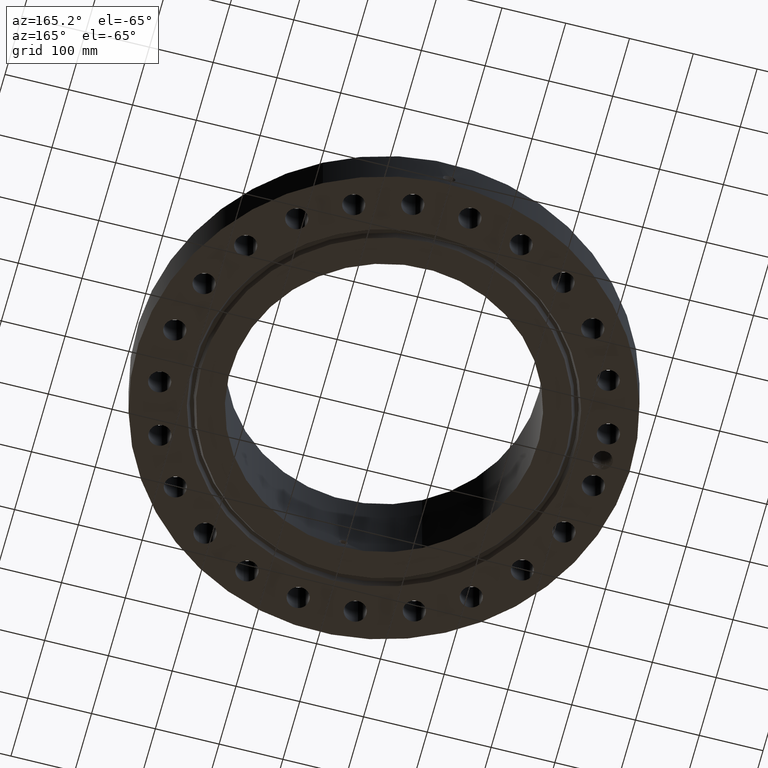
[diagram: clean part render]
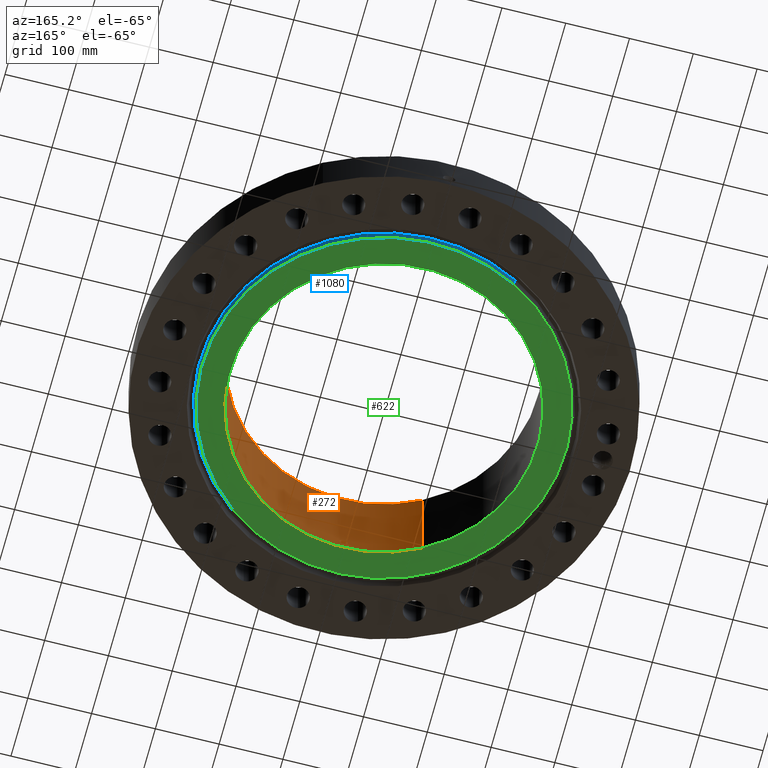
[diagram: same view with three faces highlighted in distinct colors, each labeled with its STEP entity id]
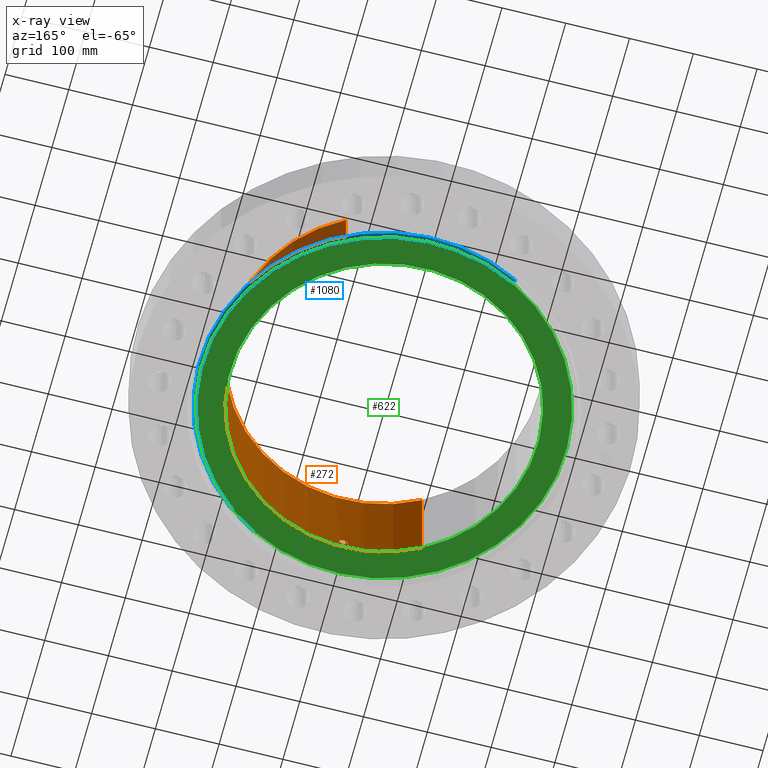
[diagram: x-ray of the same camera — body ghosted, the three highlighted faces saturated]
A machine part, auxiliary view with three faces highlighted in distinct colors.
The next image is the same camera in x-ray (body ghosted, the three faces saturated) — at least one of them is partly hidden behind the body in this view.
Their STEP definitions:

[orange] entity #272 — the highlighted cylindrical surface (partial cylindrical patch) has radius 241.3 mm, axis along (0, 0, -1).
#232=AXIS2_PLACEMENT_3D('Cylinder Axis2P3D',#229,#230,#231) ;
#236=AXIS2_PLACEMENT_3D('Circle Axis2P3D',#234,#235,$) ;
#252=AXIS2_PLACEMENT_3D('Circle Axis2P3D',#250,#251,$) ;
#81=CARTESIAN_POINT('Control Point',(0.219395640473,-9.4974662702,0.630143615351)) ;
#82=CARTESIAN_POINT('Control Point',(0.194442935976,-9.49804268863,0.584467996145)) ;
#83=CARTESIAN_POINT('Control Point',(0.157604838443,-9.49881167078,0.545287826885)) ;
#84=CARTESIAN_POINT('Control Point',(0.111106910988,-9.49955955224,0.516756479645)) ;
#85=CARTESIAN_POINT('Control Point',(0.0336718159171,-9.50015458299,0.494117188479)) ;
#86=CARTESIAN_POINT('Control Point',(-0.0446730559727,-9.49994894618,0.501943895691)) ;
#87=CARTESIAN_POINT('Control Point',(-0.070303365994,-9.4997893107,0.5079568736)) ;
#88=CARTESIAN_POINT('Control Point',(-0.143960137491,-9.49908388261,0.535790152204)) ;
#89=CARTESIAN_POINT('Control Point',(-0.203248272109,-9.49793246591,0.590507156872)) ;
#90=CARTESIAN_POINT('Control Point',(-0.232212659303,-9.49717731095,0.636748027799)) ;
#91=CARTESIAN_POINT('Control Point',(-0.255841018663,-9.49655659161,0.714893997292)) ;
#92=CARTESIAN_POINT('Control Point',(-0.248281876815,-9.49675500842,0.794257014097)) ;
#93=CARTESIAN_POINT('Control Point',(-0.242048130653,-9.49692100928,0.820818016996)) ;
#94=CARTESIAN_POINT('Control Point',(-0.232314918688,-9.49716782921,0.84620780451)) ;
#95=CARTESIAN_POINT('Control Point',(-0.219395640473,-9.4974662702,0.869856384655)) ;
#96=CARTESIAN_POINT('Vertex',(0.219395640473,-9.4974662702,0.630143615351)) ;
#98=CARTESIAN_POINT('Vertex',(-0.219395640473,-9.4974662702,0.869856384655)) ;
#206=CARTESIAN_POINT('Control Point',(-0.219395640473,-9.4974662702,0.869856384655)) ;
#207=CARTESIAN_POINT('Control Point',(-0.194442935984,-9.49804268863,0.915532003846)) ;
#208=CARTESIAN_POINT('Control Point',(-0.157604838467,-9.49881167078,0.954712173096)) ;
#209=CARTESIAN_POINT('Control Point',(-0.111106910956,-9.49955955224,0.98324352037)) ;
#210=CARTESIAN_POINT('Control Point',(-0.0336718158958,-9.50015458299,1.00588281153)) ;
#211=CARTESIAN_POINT('Control Point',(0.0446730559822,-9.49994894618,0.998056104314)) ;
#212=CARTESIAN_POINT('Control Point',(0.0703033659852,-9.4997893107,0.99204312641)) ;
#213=CARTESIAN_POINT('Control Point',(0.14396013747,-9.49908388261,0.964209847812)) ;
#214=CARTESIAN_POINT('Control Point',(0.203248272081,-9.49793246591,0.90949284316)) ;
#215=CARTESIAN_POINT('Control Point',(0.232212659314,-9.49717731095,0.863251972169)) ;
#216=CARTESIAN_POINT('Control Point',(0.255841018661,-9.49655659161,0.785106002695)) ;
#217=CARTESIAN_POINT('Control Point',(0.248281876815,-9.49675500842,0.705742985909)) ;
#218=CARTESIAN_POINT('Control Point',(0.242048130653,-9.49692100928,0.67918198301)) ;
#219=CARTESIAN_POINT('Control Point',(0.232314918688,-9.49716782921,0.653792195496)) ;
#220=CARTESIAN_POINT('Control Point',(0.219395640473,-9.4974662702,0.630143615351)) ;
#229=CARTESIAN_POINT('Axis2P3D Location',(0.,0.,3.37750000001)) ;
#234=CARTESIAN_POINT('Axis2P3D Location',(0.,0.,6.75500000003)) ;
#238=CARTESIAN_POINT('Vertex',(4.55454261676,8.33703433799,6.75500000003)) ;
#240=CARTESIAN_POINT('Vertex',(-4.55454261676,-8.33703433799,6.75500000003)) ;
#243=CARTESIAN_POINT('Line Origine',(4.55454261676,8.33703433799,3.37750000001)) ;
#247=CARTESIAN_POINT('Vertex',(4.55454261676,8.33703433799,-5.70672118484E-014)) ;
#250=CARTESIAN_POINT('Axis2P3D Location',(0.,0.,-5.81861767867E-014)) ;
#254=CARTESIAN_POINT('Vertex',(-4.55454261676,-8.33703433799,-5.70672118484E-014)) ;
#257=CARTESIAN_POINT('Line Origine',(-4.55454261676,-8.33703433799,3.37750000001)) ;
#230=DIRECTION('Axis2P3D Direction',(0.,0.,-0.0393700787402)) ;
#231=DIRECTION('Axis2P3D XDirection',(-0.0188750212049,-0.0345504945626,0.)) ;
#235=DIRECTION('Axis2P3D Direction',(0.,0.,-0.0393700787402)) ;
#244=DIRECTION('Vector Direction',(0.,0.,-0.0393700787402)) ;
#251=DIRECTION('Axis2P3D Direction',(0.,0.,-0.0393700787402)) ;
#258=DIRECTION('Vector Direction',(0.,0.,-0.0393700787402)) ;
#245=VECTOR('Line Direction',#244,0.0393700787402) ;
#259=VECTOR('Line Direction',#258,0.0393700787402) ;
#263=ORIENTED_EDGE('',*,*,#242,.F.) ;
#264=ORIENTED_EDGE('',*,*,#249,.T.) ;
#265=ORIENTED_EDGE('',*,*,#256,.T.) ;
#266=ORIENTED_EDGE('',*,*,#261,.F.) ;
#269=ORIENTED_EDGE('',*,*,#100,.F.) ;
#270=ORIENTED_EDGE('',*,*,#221,.F.) ;
#271=FACE_BOUND('',#268,.T.) ;
#272=ADVANCED_FACE('PartBody',(#267,#271),#233,.F.) ;
#80=B_SPLINE_CURVE_WITH_KNOTS('',5,(#81,#82,#83,#84,#85,#86,#87,#88,#89,#90,#91,#92,#93,#94,#95),.UNSPECIFIED.,.F.,.U.,(6,3,3,3,6),(0.,9.34849736304,14.0229160477,23.3729562087,28.2131465108),.UNSPECIFIED.) ;
#205=B_SPLINE_CURVE_WITH_KNOTS('',5,(#206,#207,#208,#209,#210,#211,#212,#213,#214,#215,#216,#217,#218,#219,#220),.UNSPECIFIED.,.F.,.U.,(6,3,3,3,6),(0.,9.34849736006,14.0229160456,23.3729562032,28.2131465052),.UNSPECIFIED.) ;
#237=CIRCLE('generated circle',#236,9.50000000004) ;
#253=CIRCLE('generated circle',#252,9.50000000004) ;
#233=CYLINDRICAL_SURFACE('generated cylinder',#232,9.50000000004) ;
#100=EDGE_CURVE('',#97,#99,#80,.T.) ;
#221=EDGE_CURVE('',#99,#97,#205,.T.) ;
#242=EDGE_CURVE('',#239,#241,#237,.T.) ;
#249=EDGE_CURVE('',#239,#248,#246,.T.) ;
#256=EDGE_CURVE('',#248,#255,#253,.T.) ;
#261=EDGE_CURVE('',#241,#255,#260,.T.) ;
#262=EDGE_LOOP('',(#263,#264,#265,#266)) ;
#268=EDGE_LOOP('',(#269,#270)) ;
#267=FACE_OUTER_BOUND('',#262,.T.) ;
#246=LINE('Line',#243,#245) ;
#260=LINE('Line',#257,#259) ;
#97=VERTEX_POINT('',#96) ;
#99=VERTEX_POINT('',#98) ;
#239=VERTEX_POINT('',#238) ;
#241=VERTEX_POINT('',#240) ;
#248=VERTEX_POINT('',#247) ;
#255=VERTEX_POINT('',#254) ;

[blue] entity #1080 — the highlighted conical surface has half-angle 23 deg.
#602=AXIS2_PLACEMENT_3D('Circle Axis2P3D',#600,#601,$) ;
#1053=AXIS2_PLACEMENT_3D('Cone Axis2P3D',#1050,#1051,#1052) ;
#1064=AXIS2_PLACEMENT_3D('Circle Axis2P3D',#1062,#1063,$) ;
#600=CARTESIAN_POINT('Axis2P3D Location',(-1.1189649382E-015,0.,0.)) ;
#604=CARTESIAN_POINT('Vertex',(-5.38610621347,9.8592012916,0.)) ;
#606=CARTESIAN_POINT('Vertex',(5.38610621347,-9.8592012916,4.19611851827E-016)) ;
#1050=CARTESIAN_POINT('Axis2P3D Location',(0.,0.,-0.0600000000002)) ;
#1055=CARTESIAN_POINT('Line Origine',(-5.42035758226,9.92189800162,0.168308030548)) ;
#1059=CARTESIAN_POINT('Vertex',(-5.45460895105,9.98459471164,0.336616061096)) ;
#1062=CARTESIAN_POINT('Axis2P3D Location',(0.,0.,0.336616061096)) ;
#1066=CARTESIAN_POINT('Vertex',(5.45460895105,-9.98459471164,0.336616061096)) ;
#1069=CARTESIAN_POINT('Line Origine',(5.42035758226,-9.92189800162,0.168308030548)) ;
#601=DIRECTION('Axis2P3D Direction',(0.,0.,-0.0393700787402)) ;
#1051=DIRECTION('Axis2P3D Direction',(0.,0.,0.0393700787402)) ;
#1052=DIRECTION('Axis2P3D XDirection',(-0.0188750212049,0.0345504945626,0.)) ;
#1056=DIRECTION('Vector Direction',(-0.00737505833565,0.0134999537303,0.0362403485611)) ;
#1063=DIRECTION('Axis2P3D Direction',(0.,0.,0.0393700787402)) ;
#1070=DIRECTION('Vector Direction',(0.00737505833565,-0.0134999537303,0.0362403485611)) ;
#1057=VECTOR('Line Direction',#1056,0.0393700787402) ;
#1071=VECTOR('Line Direction',#1070,0.0393700787402) ;
#1075=ORIENTED_EDGE('',*,*,#1061,.F.) ;
#1076=ORIENTED_EDGE('',*,*,#1068,.F.) ;
#1077=ORIENTED_EDGE('',*,*,#1073,.T.) ;
#1078=ORIENTED_EDGE('',*,*,#608,.F.) ;
#1080=ADVANCED_FACE('PartBody',(#1079),#1054,.T.) ;
#603=CIRCLE('generated circle',#602,11.2345) ;
#1065=CIRCLE('generated circle',#1064,11.3773850407) ;
#1054=CONICAL_SURFACE('Cone',#1053,11.2090315111,0.401425727959) ;
#608=EDGE_CURVE('',#605,#607,#603,.T.) ;
#1061=EDGE_CURVE('',#1060,#605,#1058,.F.) ;
#1068=EDGE_CURVE('',#1067,#1060,#1065,.T.) ;
#1073=EDGE_CURVE('',#1067,#607,#1072,.F.) ;
#1074=EDGE_LOOP('',(#1075,#1076,#1077,#1078)) ;
#1079=FACE_OUTER_BOUND('',#1074,.T.) ;
#1058=LINE('Line',#1055,#1057) ;
#1072=LINE('Line',#1069,#1071) ;
#605=VERTEX_POINT('',#604) ;
#607=VERTEX_POINT('',#606) ;
#1060=VERTEX_POINT('',#1059) ;
#1067=VERTEX_POINT('',#1066) ;

[green] entity #622 — the highlighted planar face has unit normal (0, 0, -1).
#252=AXIS2_PLACEMENT_3D('Circle Axis2P3D',#250,#251,$) ;
#543=AXIS2_PLACEMENT_3D('Circle Axis2P3D',#541,#542,$) ;
#598=AXIS2_PLACEMENT_3D('Plane Axis2P3D',#595,#596,#597) ;
#602=AXIS2_PLACEMENT_3D('Circle Axis2P3D',#600,#601,$) ;
#611=AXIS2_PLACEMENT_3D('Circle Axis2P3D',#609,#610,$) ;
#247=CARTESIAN_POINT('Vertex',(4.55454261676,8.33703433799,-5.70672118484E-014)) ;
#250=CARTESIAN_POINT('Axis2P3D Location',(0.,0.,-5.81861767867E-014)) ;
#254=CARTESIAN_POINT('Vertex',(-4.55454261676,-8.33703433799,-5.70672118484E-014)) ;
#541=CARTESIAN_POINT('Axis2P3D Location',(0.,0.,-5.81861767867E-014)) ;
#595=CARTESIAN_POINT('Axis2P3D Location',(0.,9.50000000004,0.)) ;
#600=CARTESIAN_POINT('Axis2P3D Location',(-1.1189649382E-015,0.,0.)) ;
#604=CARTESIAN_POINT('Vertex',(-5.38610621347,9.8592012916,0.)) ;
#606=CARTESIAN_POINT('Vertex',(5.38610621347,-9.8592012916,4.19611851827E-016)) ;
#609=CARTESIAN_POINT('Axis2P3D Location',(4.47585975282E-015,0.,0.)) ;
#251=DIRECTION('Axis2P3D Direction',(0.,0.,-0.0393700787402)) ;
#542=DIRECTION('Axis2P3D Direction',(0.,0.,-0.0393700787402)) ;
#596=DIRECTION('Axis2P3D Direction',(0.,0.,-0.0393700787402)) ;
#597=DIRECTION('Axis2P3D XDirection',(0.0393700787402,0.,0.)) ;
#601=DIRECTION('Axis2P3D Direction',(0.,0.,-0.0393700787402)) ;
#610=DIRECTION('Axis2P3D Direction',(0.,0.,-0.0393700787402)) ;
#615=ORIENTED_EDGE('',*,*,#608,.T.) ;
#616=ORIENTED_EDGE('',*,*,#613,.T.) ;
#619=ORIENTED_EDGE('',*,*,#256,.F.) ;
#620=ORIENTED_EDGE('',*,*,#545,.F.) ;
#621=FACE_BOUND('',#618,.T.) ;
#622=ADVANCED_FACE('PartBody',(#617,#621),#599,.T.) ;
#253=CIRCLE('generated circle',#252,9.50000000004) ;
#544=CIRCLE('generated circle',#543,9.50000000004) ;
#603=CIRCLE('generated circle',#602,11.2345) ;
#612=CIRCLE('generated circle',#611,11.2345) ;
#256=EDGE_CURVE('',#248,#255,#253,.T.) ;
#545=EDGE_CURVE('',#255,#248,#544,.T.) ;
#608=EDGE_CURVE('',#605,#607,#603,.T.) ;
#613=EDGE_CURVE('',#607,#605,#612,.T.) ;
#614=EDGE_LOOP('',(#615,#616)) ;
#618=EDGE_LOOP('',(#619,#620)) ;
#617=FACE_OUTER_BOUND('',#614,.T.) ;
#599=PLANE('',#598) ;
#248=VERTEX_POINT('',#247) ;
#255=VERTEX_POINT('',#254) ;
#605=VERTEX_POINT('',#604) ;
#607=VERTEX_POINT('',#606) ;